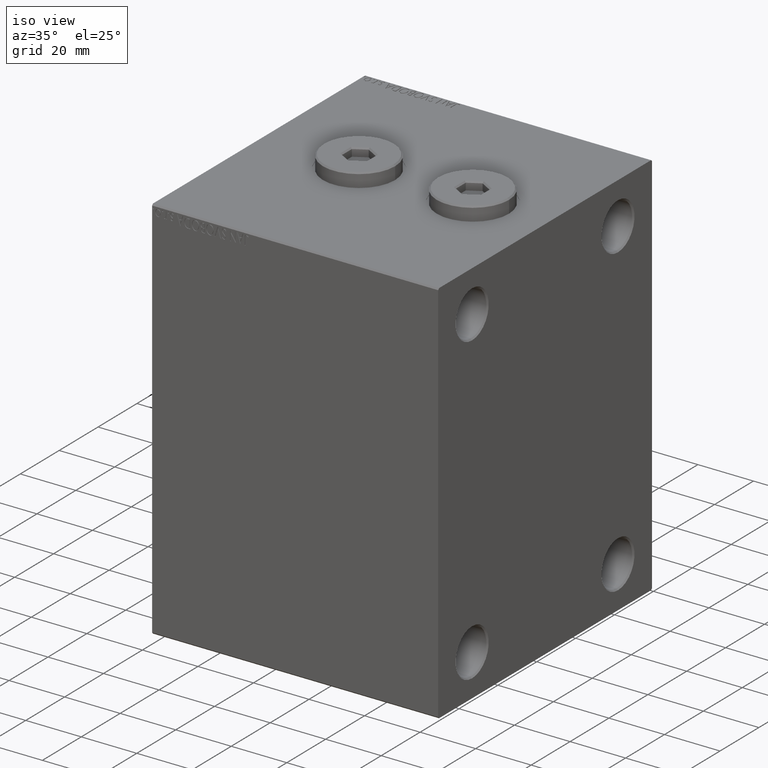
[diagram: clean part render]
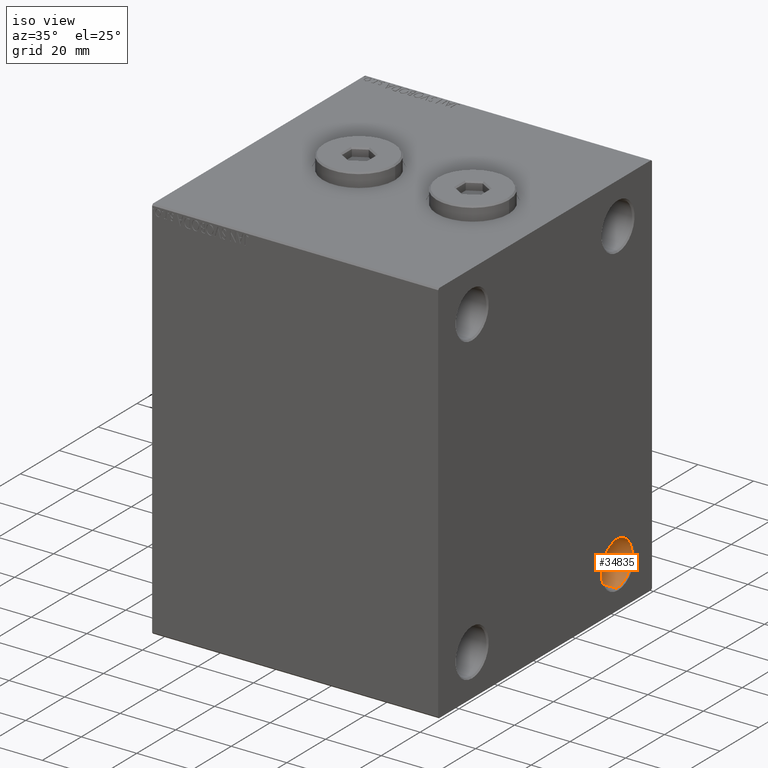
[diagram: same view with one face highlighted and labeled with its STEP entity id]
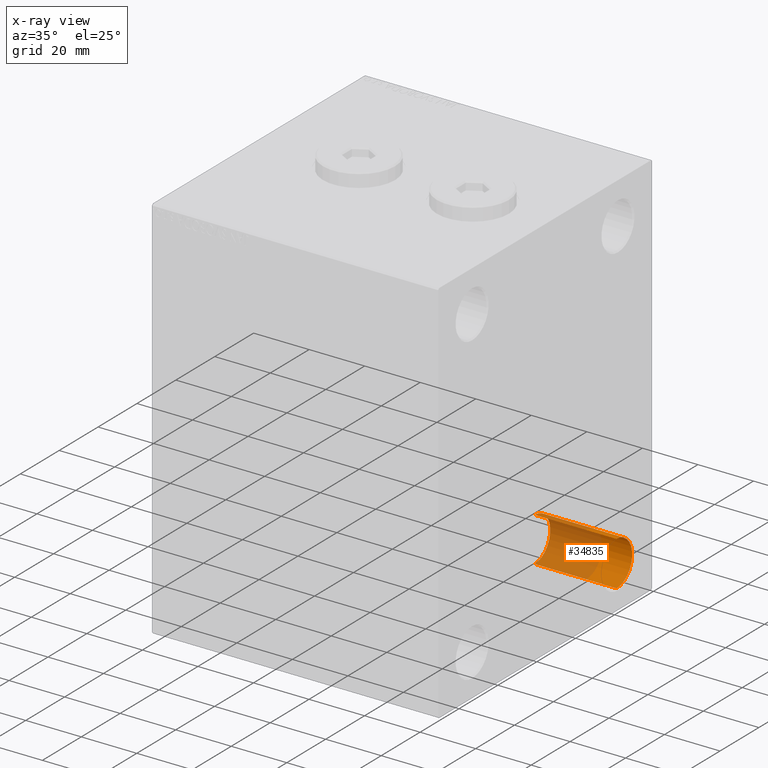
[diagram: x-ray of the same camera — body ghosted, the highlighted face saturated]
A machine part, iso view. The second image highlights one B-rep face of the part: STEP entity #34835.
The next image is the same camera in x-ray: the body ghosted, the highlighted face saturated — about 63% of this face is hidden behind the body in this view.
In plain terms, the highlighted cylindrical surface (edge-blend (fillet) strip) has radius 8 mm, axis along (1, 0, 0).
Its self-contained STEP definition (entity closure, byte-faithful):
#351 = EDGE_CURVE ( 'NONE', #36119, #38551, #7897, .T. ) ;
#3139 = CARTESIAN_POINT ( 'NONE',  ( 103.0000000000000000, 37.50000000000000000, -54.99999999999999289 ) ) ;
#4034 = CARTESIAN_POINT ( 'NONE',  ( 103.0000000000000000, 37.50000000000000000, -62.99999999999998579 ) ) ;
#4859 = CARTESIAN_POINT ( 'NONE',  ( 102.4999999999999858, 37.50000000000000000, -47.00000000000000000 ) ) ;
#5414 = VERTEX_POINT ( 'NONE', #20965 ) ;
#5703 = AXIS2_PLACEMENT_3D ( 'NONE', #42617, #21669, #32932 ) ;
#7897 = CIRCLE ( 'NONE', #5703, 7.999999999999992895 ) ;
#8354 = EDGE_CURVE ( 'NONE', #42013, #5414, #13901, .T. ) ;
#9718 = CARTESIAN_POINT ( 'NONE',  ( 73.00000000000000000, 37.50000000000000000, -47.00000000000000000 ) ) ;
#10730 = DIRECTION ( 'NONE',  ( 1.000000000000000000, -0.000000000000000000, -0.000000000000000000 ) ) ;
#12229 = DIRECTION ( 'NONE',  ( 0.000000000000000000, 0.000000000000000000, -1.000000000000000000 ) ) ;
#13901 = CIRCLE ( 'NONE', #44741, 7.999999999999992895 ) ;
#17844 = LINE ( 'NONE', #4034, #41084 ) ;
#17872 = AXIS2_PLACEMENT_3D ( 'NONE', #3139, #10730, #37881 ) ;
#18806 = DIRECTION ( 'NONE',  ( 1.000000000000000000, -0.000000000000000000, -0.000000000000000000 ) ) ;
#20035 = EDGE_CURVE ( 'NONE', #38551, #5414, #17844, .T. ) ;
#20965 = CARTESIAN_POINT ( 'NONE',  ( 102.4999999999999858, 37.50000000000000000, -62.99999999999998579 ) ) ;
#21669 = DIRECTION ( 'NONE',  ( -1.000000000000000000, 0.000000000000000000, 0.000000000000000000 ) ) ;
#24735 = DIRECTION ( 'NONE',  ( 1.000000000000000000, -0.000000000000000000, -0.000000000000000000 ) ) ;
#26493 = VECTOR ( 'NONE', #18806, 1000.000000000000000 ) ;
#27975 = ORIENTED_EDGE ( 'NONE', *, *, #28500, .F. ) ;
#27982 = FACE_OUTER_BOUND ( 'NONE', #34938, .T. ) ;
#28500 = EDGE_CURVE ( 'NONE', #36119, #42013, #32840, .T. ) ;
#30648 = CARTESIAN_POINT ( 'NONE',  ( 73.00000000000000000, 37.50000000000000000, -62.99999999999998579 ) ) ;
#32783 = ORIENTED_EDGE ( 'NONE', *, *, #20035, .T. ) ;
#32840 = LINE ( 'NONE', #39508, #26493 ) ;
#32932 = DIRECTION ( 'NONE',  ( 0.000000000000000000, 0.000000000000000000, 1.000000000000000000 ) ) ;
#34835 = ADVANCED_FACE ( 'NONE', ( #27982 ), #45240, .F. ) ;
#34938 = EDGE_LOOP ( 'NONE', ( #36441, #32783, #41749, #27975 ) ) ;
#36119 = VERTEX_POINT ( 'NONE', #9718 ) ;
#36441 = ORIENTED_EDGE ( 'NONE', *, *, #351, .T. ) ;
#36836 = DIRECTION ( 'NONE',  ( -1.000000000000000000, 0.000000000000000000, 0.000000000000000000 ) ) ;
#37881 = DIRECTION ( 'NONE',  ( 0.000000000000000000, 0.000000000000000000, 1.000000000000000000 ) ) ;
#38551 = VERTEX_POINT ( 'NONE', #30648 ) ;
#39508 = CARTESIAN_POINT ( 'NONE',  ( 103.0000000000000000, 37.50000000000000000, -47.00000000000000000 ) ) ;
#41084 = VECTOR ( 'NONE', #24735, 1000.000000000000000 ) ;
#41749 = ORIENTED_EDGE ( 'NONE', *, *, #8354, .F. ) ;
#42013 = VERTEX_POINT ( 'NONE', #4859 ) ;
#42617 = CARTESIAN_POINT ( 'NONE',  ( 73.00000000000000000, 37.50000000000000000, -54.99999999999999289 ) ) ;
#43746 = CARTESIAN_POINT ( 'NONE',  ( 102.4999999999999858, 37.50000000000000000, -54.99999999999999289 ) ) ;
#44741 = AXIS2_PLACEMENT_3D ( 'NONE', #43746, #36836, #12229 ) ;
#45240 = CYLINDRICAL_SURFACE ( 'NONE', #17872, 7.999999999999992895 ) ;